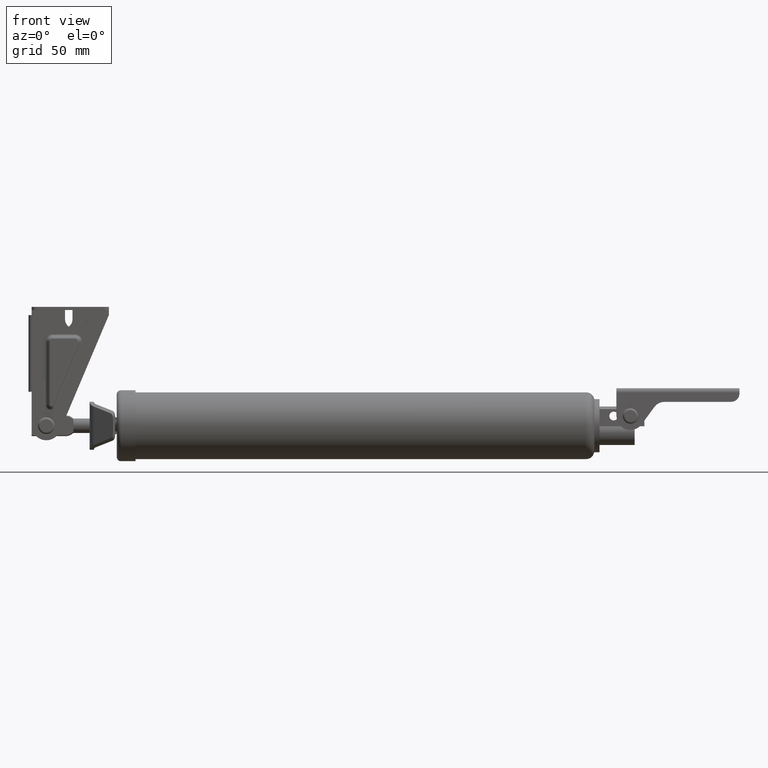
[diagram: clean part render]
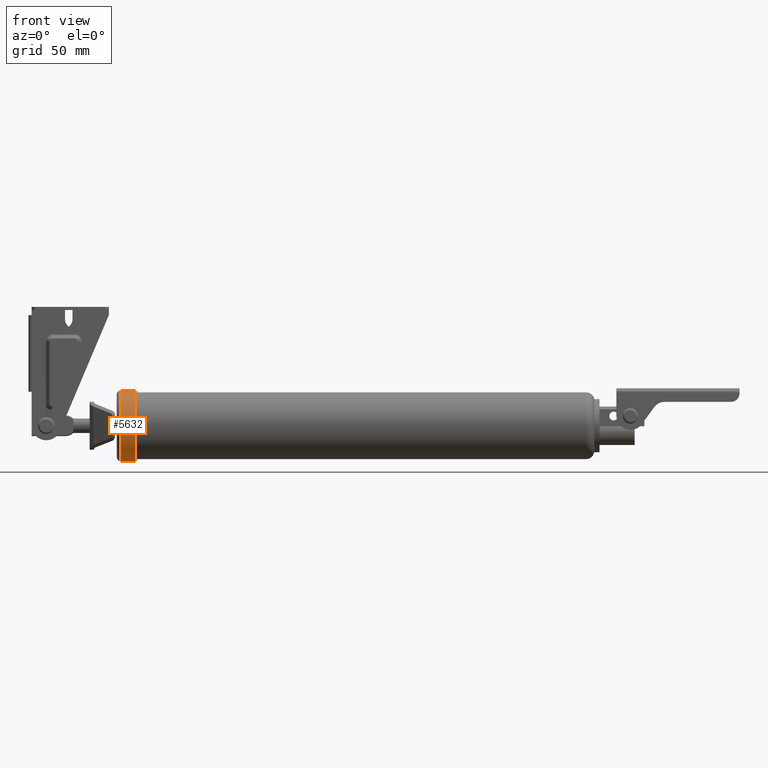
[diagram: same view with one face highlighted and labeled with its STEP entity id]
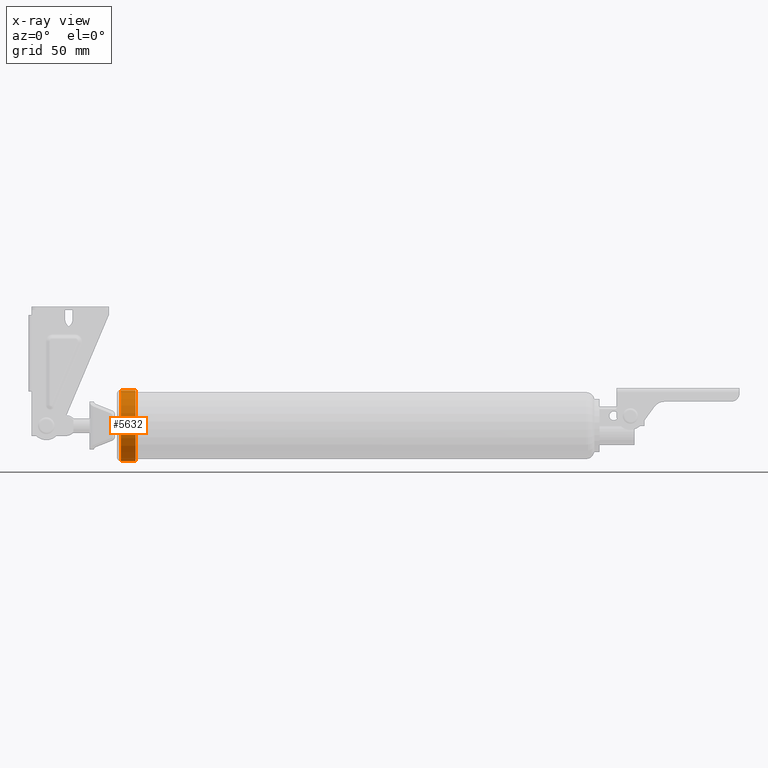
[diagram: x-ray of the same camera — body ghosted, the highlighted face saturated]
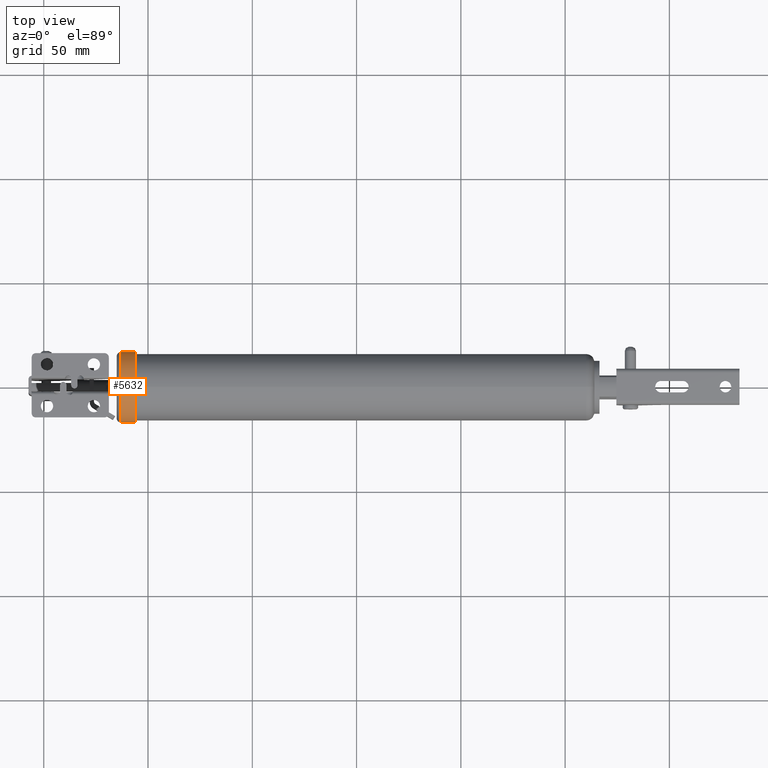
[diagram: same view with one face highlighted and labeled with its STEP entity id]
A machine part, front view. The second image highlights one B-rep face of the part: STEP entity #5632.
The next image is the same camera in x-ray: the body ghosted, the highlighted face saturated — about 0% of this face is hidden behind the body in this view.
A second angle (top view) of the same face is appended — the face is thin or edge-on in the first view.
In plain terms, the highlighted cylindrical surface (bore or boss wall) has radius 17 mm, axis along (-1, 0, 0).
Its self-contained STEP definition (entity closure, byte-faithful):
#1422=FACE_BOUND('',#1865,.T.);
#1511=FACE_OUTER_BOUND('',#1864,.T.);
#1864=EDGE_LOOP('',(#3893));
#1865=EDGE_LOOP('',(#3894));
#2299=CIRCLE('',#5996,17.);
#2301=CIRCLE('',#6000,17.);
#2522=VERTEX_POINT('',#8214);
#2524=VERTEX_POINT('',#8220);
#3068=EDGE_CURVE('',#2522,#2522,#2299,.T.);
#3070=EDGE_CURVE('',#2524,#2524,#2301,.T.);
#3893=ORIENTED_EDGE('',*,*,#3068,.T.);
#3894=ORIENTED_EDGE('',*,*,#3070,.T.);
#5530=CYLINDRICAL_SURFACE('',#5999,17.);
#5632=ADVANCED_FACE('',(#1511,#1422),#5530,.T.);
#5996=AXIS2_PLACEMENT_3D('',#8215,#6580,#6581);
#5999=AXIS2_PLACEMENT_3D('',#8219,#6586,#6587);
#6000=AXIS2_PLACEMENT_3D('',#8221,#6588,#6589);
#6580=DIRECTION('center_axis',(1.0449157878825E-15,-1.,-2.69161560461122E-63));
#6581=DIRECTION('ref_axis',(-2.57591629471474E-48,-2.15904213877361E-78,
-1.));
#6586=DIRECTION('center_axis',(0.,-1.,0.));
#6587=DIRECTION('ref_axis',(-4.34084385636102E-15,0.,-1.));
#6588=DIRECTION('center_axis',(-1.0449157878825E-15,1.,0.));
#6589=DIRECTION('ref_axis',(0.,0.,-1.));
#8214=CARTESIAN_POINT('',(7.22320719324641E-14,-106.,17.));
#8215=CARTESIAN_POINT('Origin',(0.,-106.,0.));
#8219=CARTESIAN_POINT('Origin',(5.19625932877187E-16,-113.82,0.));
#8220=CARTESIAN_POINT('',(7.22320719324641E-14,-113.,17.));
#8221=CARTESIAN_POINT('Origin',(0.,-113.,0.));